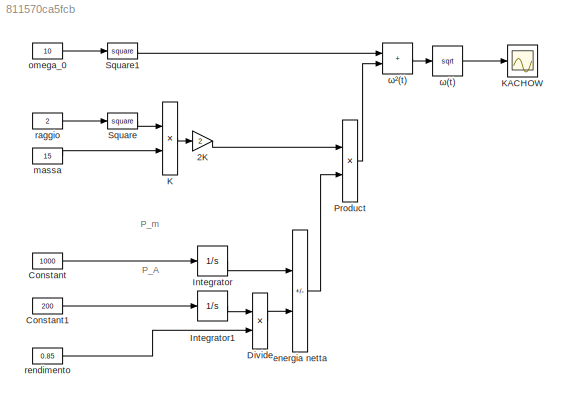
MODEL slx_811570ca5fcb
KIND model
CONFIG AbsTol = auto
CONFIG EnableMultiTasking = off
CONFIG FixedStep = auto
CONFIG MaxStep = auto
CONFIG MinStep = auto
CONFIG RelTol = 1e-3
CONFIG SampleTimeConstraint = Unconstrained
CONFIG SolverName = VariableStepAuto
CONFIG StartTime = 0.0
CONFIG StopTime = 10.0
BLOCK [Gain] 2K
  Gain = 2
BLOCK [Constant] Constant
  Value = 1000
BLOCK [Constant] Constant1
  Value = 200
BLOCK [Product] Divide
  Inputs = */
BLOCK [Integrator] Integrator
BLOCK [Integrator] Integrator1
BLOCK [Product] K
  Inputs = //
BLOCK [Scope] KACHOW
  Floating = off
  NumInputPorts = 1
  ScopeSpecificationString = Simulink.scopes.TimeScopeBlockCfg('CurrentConfiguration', extmgr.ConfigurationSet(extmgr.Configuration('Core','General UI',true),extmgr.Configuration('Core','Source UI',true),extmgr.Configuration('Sources','WiredSimulink',true),extmgr.Configuration('Visuals','Time Domain',true,'SerializedDisplays',{struct('MinYLimReal','8.89514','MaxYLimReal','19.9437','YLabelReal','','MinYLimMag','8.89514','MaxYL...<+1441ch>
BLOCK [Product] Product
BLOCK [Math] Square
  Operator = square
BLOCK [Math] Square1
  Operator = square
BLOCK [Sum] energia netta
  IconShape = rectangular
  Inputs = +-
BLOCK [Constant] massa
  Value = 15
BLOCK [Constant] omega_0
  Value = 10
BLOCK [Constant] raggio
  Value = 2
BLOCK [Constant] rendimento
  Value = 0.85
BLOCK [Sqrt] ω(t)
BLOCK [Sum] ω²(t)
  IconShape = rectangular
ANNOTATION (root): P_A
ANNOTATION (root): P_m
LINE 2K:1 -> Product:1
LINE Constant1:1 -> Integrator1:1
LINE Constant:1 -> Integrator:1
LINE Divide:1 -> energia netta:2
LINE Integrator1:1 -> Divide:1
LINE Integrator:1 -> energia netta:1
LINE K:1 -> 2K:1
LINE Product:1 -> ω²(t):2
LINE Square1:1 -> ω²(t):1
LINE Square:1 -> K:1
LINE energia netta:1 -> Product:2
LINE massa:1 -> K:2
LINE omega_0:1 -> Square1:1
LINE raggio:1 -> Square:1
LINE rendimento:1 -> Divide:2
LINE ω(t):1 -> KACHOW:1
LINE ω²(t):1 -> ω(t):1
